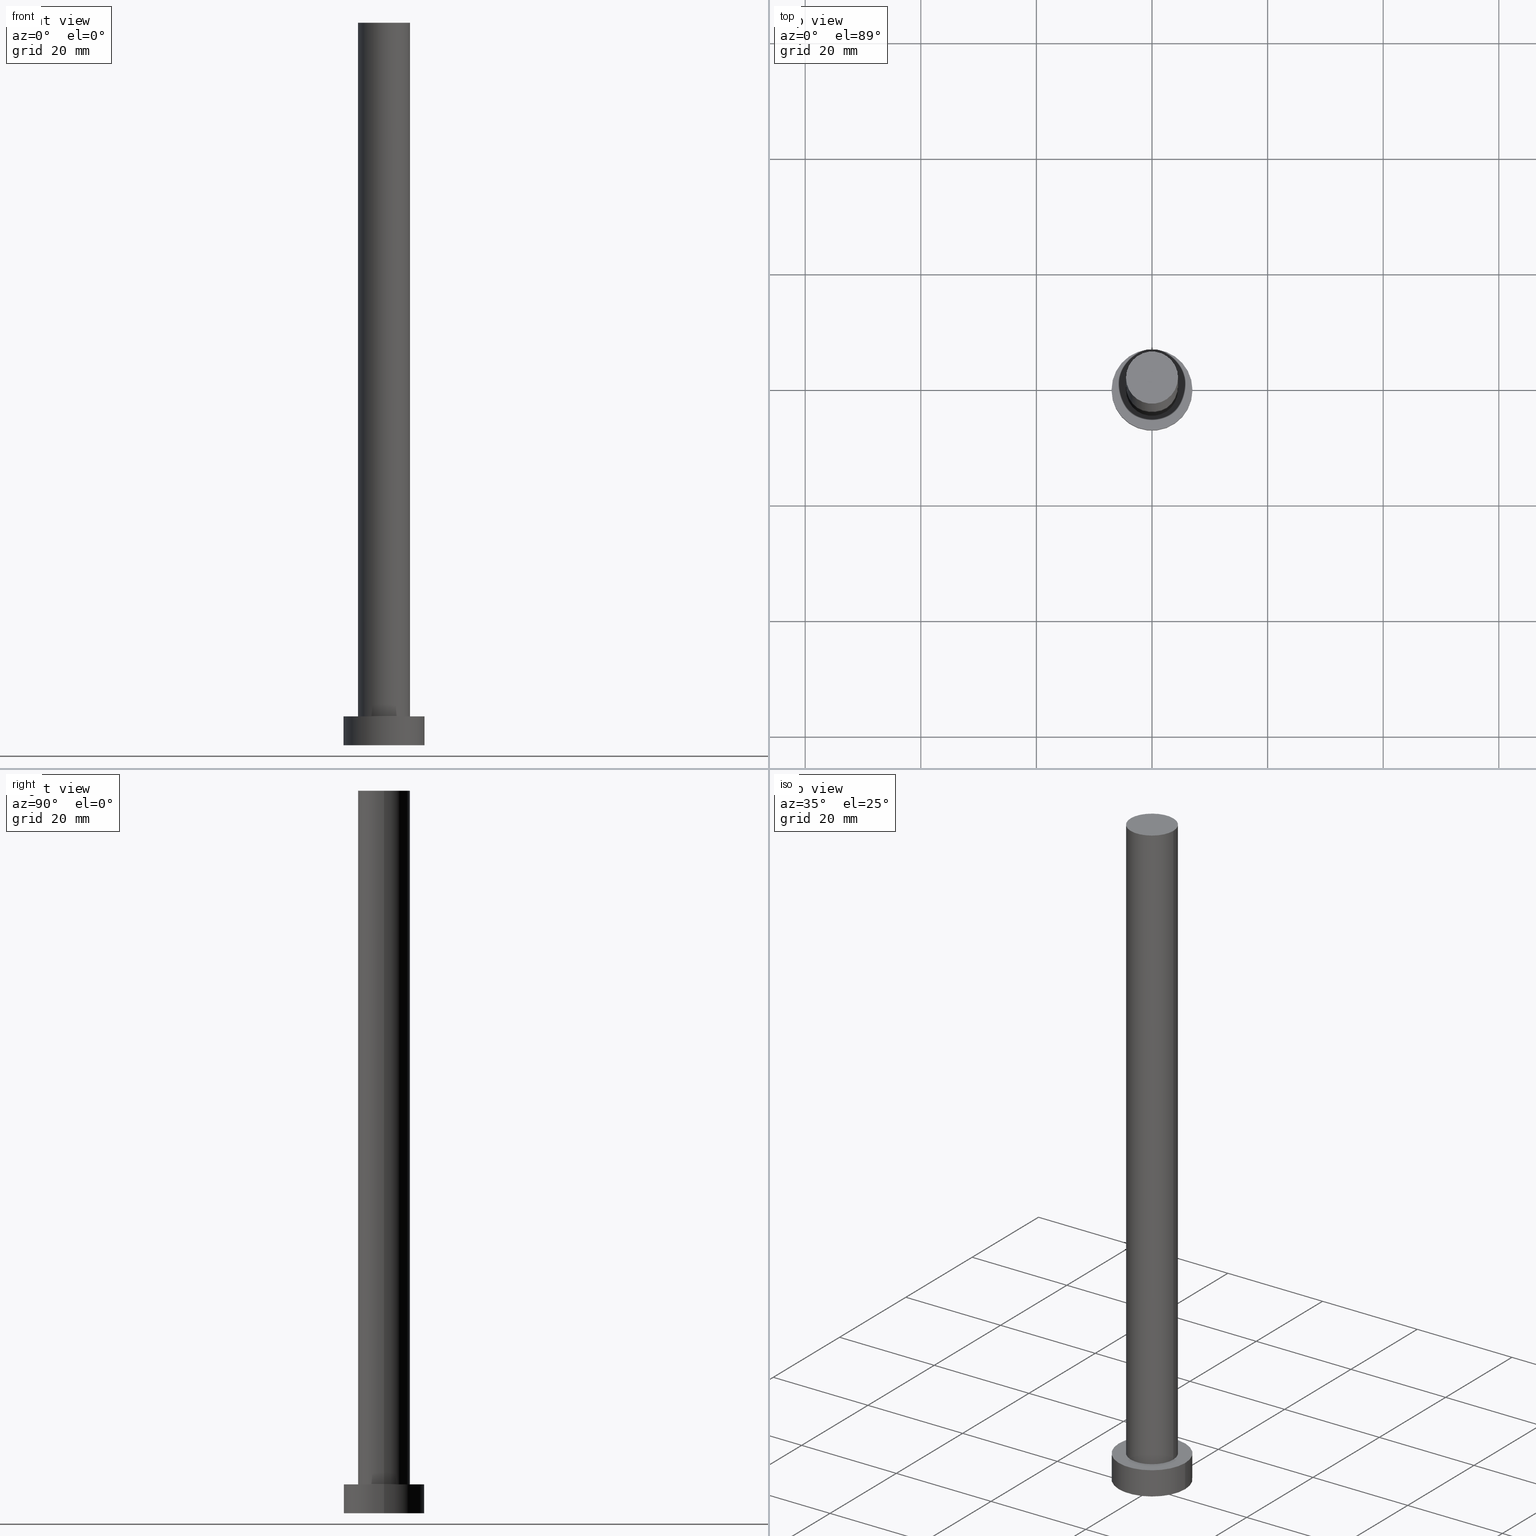
[diagram: canonical four-view strip — front | top / right | iso, engineering-drawing reading convention]
A machine part, canonical four-view strip (front | top / right | iso — engineering-drawing reading convention). The complete STEP part file that produces these views, byte-faithful:
ISO-10303-21;
HEADER;
FILE_DESCRIPTION (( 'STEP AP203' ),
    '1' );
FILE_NAME ('8ab7.STEP',
    '2023-02-13T12:09:12',
    ( '' ),
    ( '' ),
    'SwSTEP 2.0',
    'SolidWorks 2019',
    '' );
FILE_SCHEMA (( 'CONFIG_CONTROL_DESIGN' ));
ENDSEC;

DATA;
#1 = COORDINATED_UNIVERSAL_TIME_OFFSET ( 1, 0, .AHEAD. ) ;
#2 = LOCAL_TIME ( 13, 9, 12.00000000000000000, #73 ) ;
#3 = EDGE_LOOP ( 'NONE', ( #94, #121 ) ) ;
#4 = CC_DESIGN_PERSON_AND_ORGANIZATION_ASSIGNMENT ( #199, #153, ( #166 ) ) ;
#5 = CARTESIAN_POINT ( 'NONE',  ( 7.000000000000000000, 8.572527594031473190E-16, 0.000000000000000000 ) ) ;
#6 = CYLINDRICAL_SURFACE ( 'NONE', #186, 7.000000000000000000 ) ;
#7 = CYLINDRICAL_SURFACE ( 'NONE', #105, 7.000000000000000000 ) ;
#8 = CARTESIAN_POINT ( 'NONE',  ( -7.000000000000000000, 0.000000000000000000, 5.000000000000000000 ) ) ;
#9 = EDGE_CURVE ( 'NONE', #100, #41, #227, .T. ) ;
#10 = DIRECTION ( 'NONE',  ( 1.000000000000000000, 0.000000000000000000, 0.000000000000000000 ) ) ;
#11 = APPROVAL_PERSON_ORGANIZATION ( #182, #209, #77 ) ;
#12 = APPROVAL_ROLE ( '' ) ;
#13 = DIRECTION ( 'NONE',  ( 1.000000000000000000, 0.000000000000000000, 0.000000000000000000 ) ) ;
#14 = AXIS2_PLACEMENT_3D ( 'NONE', #202, #17, #79 ) ;
#15 = AXIS2_PLACEMENT_3D ( 'NONE', #194, #192, #148 ) ;
#16 = ADVANCED_FACE ( 'NONE', ( #126 ), #125, .T. ) ;
#17 = DIRECTION ( 'NONE',  ( 0.000000000000000000, 0.000000000000000000, 1.000000000000000000 ) ) ;
#18 = DIRECTION ( 'NONE',  ( 0.000000000000000000, 0.000000000000000000, 1.000000000000000000 ) ) ;
#19 = ORIENTED_EDGE ( 'NONE', *, *, #60, .T. ) ;
#20 = PERSON_AND_ORGANIZATION_ROLE ( 'creator' ) ;
#21 = ORIENTED_EDGE ( 'NONE', *, *, #9, .F. ) ;
#22 = FACE_OUTER_BOUND ( 'NONE', #248, .T. ) ;
#23 = EDGE_CURVE ( 'NONE', #100, #162, #190, .T. ) ;
#24 = SHAPE_DEFINITION_REPRESENTATION ( #155, #135 ) ;
#25 = CARTESIAN_POINT ( 'NONE',  ( 0.000000000000000000, 0.000000000000000000, 125.0000000000000000 ) ) ;
#26 = DIRECTION ( 'NONE',  ( -0.000000000000000000, -0.000000000000000000, -1.000000000000000000 ) ) ;
#27 = DIRECTION ( 'NONE',  ( -0.000000000000000000, -0.000000000000000000, -1.000000000000000000 ) ) ;
#28 = CC_DESIGN_APPROVAL ( #209, ( #176 ) ) ;
#29 = DIRECTION ( 'NONE',  ( 0.000000000000000000, 0.000000000000000000, 1.000000000000000000 ) ) ;
#30 = CIRCLE ( 'NONE', #81, 7.000000000000000000 ) ;
#31 = ORIENTED_EDGE ( 'NONE', *, *, #255, .T. ) ;
#32 =( LENGTH_UNIT ( ) NAMED_UNIT ( * ) SI_UNIT ( .MILLI., .METRE. ) );
#33 = EDGE_CURVE ( 'NONE', #117, #162, #30, .T. ) ;
#34 = PRODUCT_DEFINITION_FORMATION_WITH_SPECIFIED_SOURCE ( 'LIBOVOLN�', '', #166, .NOT_KNOWN. ) ;
#35 = APPROVAL_STATUS ( 'not_yet_approved' ) ;
#36 = PERSON_AND_ORGANIZATION_ROLE ( 'classification_officer' ) ;
#37 = ORIENTED_EDGE ( 'NONE', *, *, #218, .T. ) ;
#38 = ADVANCED_FACE ( 'NONE', ( #22 ), #7, .T. ) ;
#39 = LOCAL_TIME ( 13, 9, 12.00000000000000000, #159 ) ;
#40 = CARTESIAN_POINT ( 'NONE',  ( 0.000000000000000000, 0.000000000000000000, 0.000000000000000000 ) ) ;
#41 = VERTEX_POINT ( 'NONE', #44 ) ;
#42 = CARTESIAN_POINT ( 'NONE',  ( -4.500000000000000888, 0.000000000000000000, 5.000000000000000000 ) ) ;
#43 = DIRECTION ( 'NONE',  ( 1.000000000000000000, 0.000000000000000000, -0.000000000000000000 ) ) ;
#44 = CARTESIAN_POINT ( 'NONE',  ( 7.000000000000000000, 8.572527594031473190E-16, 5.000000000000000000 ) ) ;
#45 = APPLICATION_CONTEXT ( 'configuration controlled 3d designs of mechanical parts and assemblies' ) ;
#46 = FACE_BOUND ( 'NONE', #165, .T. ) ;
#47 = CIRCLE ( 'NONE', #131, 4.500000000000000888 ) ;
#48 = DIRECTION ( 'NONE',  ( -0.000000000000000000, -0.000000000000000000, -1.000000000000000000 ) ) ;
#49 = CC_DESIGN_APPROVAL ( #236, ( #34 ) ) ;
#50 = CARTESIAN_POINT ( 'NONE',  ( -7.000000000000000000, 0.000000000000000000, 0.000000000000000000 ) ) ;
#51 = DIRECTION ( 'NONE',  ( 1.000000000000000000, 0.000000000000000000, 0.000000000000000000 ) ) ;
#52 = DIRECTION ( 'NONE',  ( 0.000000000000000000, 0.000000000000000000, 1.000000000000000000 ) ) ;
#53 = APPROVAL_ROLE ( '' ) ;
#54 = EDGE_LOOP ( 'NONE', ( #138, #228 ) ) ;
#55 = CIRCLE ( 'NONE', #106, 4.500000000000000888 ) ;
#56 = ADVANCED_FACE ( 'NONE', ( #85 ), #174, .T. ) ;
#57 = ORIENTED_EDGE ( 'NONE', *, *, #139, .F. ) ;
#58 = VERTEX_POINT ( 'NONE', #168 ) ;
#59 = SECURITY_CLASSIFICATION_LEVEL ( 'unclassified' ) ;
#60 = EDGE_CURVE ( 'NONE', #215, #78, #206, .T. ) ;
#61 = DATE_AND_TIME ( #66, #39 ) ;
#62 = DIRECTION ( 'NONE',  ( 0.000000000000000000, 0.000000000000000000, 1.000000000000000000 ) ) ;
#63 = CYLINDRICAL_SURFACE ( 'NONE', #195, 4.500000000000000888 ) ;
#64 = CC_DESIGN_DATE_AND_TIME_ASSIGNMENT ( #237, #230, ( #119 ) ) ;
#65 = PLANE ( 'NONE',  #222 ) ;
#66 = CALENDAR_DATE ( 2023, 13, 2 ) ;
#67 = CARTESIAN_POINT ( 'NONE',  ( 0.000000000000000000, 0.000000000000000000, 125.0000000000000000 ) ) ;
#68 = CARTESIAN_POINT ( 'NONE',  ( 0.000000000000000000, 0.000000000000000000, 5.000000000000000000 ) ) ;
#69 = ADVANCED_FACE ( 'NONE', ( #46, #171 ), #147, .T. ) ;
#70 = CARTESIAN_POINT ( 'NONE',  ( 0.000000000000000000, 0.000000000000000000, 5.000000000000000000 ) ) ;
#71 = CARTESIAN_POINT ( 'NONE',  ( 0.000000000000000000, 0.000000000000000000, 125.0000000000000000 ) ) ;
#72 = PRODUCT_RELATED_PRODUCT_CATEGORY ( 'detail', '', ( #166 ) ) ;
#73 = COORDINATED_UNIVERSAL_TIME_OFFSET ( 1, 0, .AHEAD. ) ;
#74 = AXIS2_PLACEMENT_3D ( 'NONE', #70, #91, #109 ) ;
#75 = CALENDAR_DATE ( 2023, 13, 2 ) ;
#76 = VERTEX_POINT ( 'NONE', #42 ) ;
#77 = APPROVAL_ROLE ( '' ) ;
#78 = VERTEX_POINT ( 'NONE', #243 ) ;
#79 = DIRECTION ( 'NONE',  ( 1.000000000000000000, 0.000000000000000000, 0.000000000000000000 ) ) ;
#80 = DIRECTION ( 'NONE',  ( 0.000000000000000000, 0.000000000000000000, 1.000000000000000000 ) ) ;
#81 = AXIS2_PLACEMENT_3D ( 'NONE', #104, #80, #208 ) ;
#82 = ADVANCED_FACE ( 'NONE', ( #122 ), #63, .T. ) ;
#83 = UNCERTAINTY_MEASURE_WITH_UNIT (LENGTH_MEASURE( 1.000000000000000082E-05 ), #32, 'distance_accuracy_value', 'NONE');
#84 = DIRECTION ( 'NONE',  ( -1.000000000000000000, 0.000000000000000000, 0.000000000000000000 ) ) ;
#85 = FACE_OUTER_BOUND ( 'NONE', #252, .T. ) ;
#86 = CARTESIAN_POINT ( 'NONE',  ( 0.000000000000000000, 0.000000000000000000, 125.0000000000000000 ) ) ;
#87 = EDGE_CURVE ( 'NONE', #76, #78, #47, .T. ) ;
#88 = LOCAL_TIME ( 13, 9, 12.00000000000000000, #1 ) ;
#89 = CC_DESIGN_DATE_AND_TIME_ASSIGNMENT ( #98, #200, ( #176 ) ) ;
#90 = AXIS2_PLACEMENT_3D ( 'NONE', #172, #62, #221 ) ;
#91 = DIRECTION ( 'NONE',  ( 0.000000000000000000, 0.000000000000000000, 1.000000000000000000 ) ) ;
#92 = CIRCLE ( 'NONE', #15, 7.000000000000000000 ) ;
#93 = DATE_AND_TIME ( #116, #2 ) ;
#94 = ORIENTED_EDGE ( 'NONE', *, *, #218, .F. ) ;
#95 = APPLICATION_PROTOCOL_DEFINITION ( 'international standard', 'config_control_design', 1994, #45 ) ;
#96 = PERSON_AND_ORGANIZATION ( #214, #225 ) ;
#97 = APPLICATION_CONTEXT ( 'configuration controlled 3d designs of mechanical parts and assemblies' ) ;
#98 = DATE_AND_TIME ( #232, #141 ) ;
#99 = VECTOR ( 'NONE', #219, 1000.000000000000000 ) ;
#100 = VERTEX_POINT ( 'NONE', #8 ) ;
#101 = CIRCLE ( 'NONE', #74, 7.000000000000000000 ) ;
#102 = DIRECTION ( 'NONE',  ( -0.000000000000000000, -0.000000000000000000, -1.000000000000000000 ) ) ;
#103 = DIRECTION ( 'NONE',  ( 0.000000000000000000, 0.000000000000000000, 1.000000000000000000 ) ) ;
#104 = CARTESIAN_POINT ( 'NONE',  ( 0.000000000000000000, 0.000000000000000000, 0.000000000000000000 ) ) ;
#105 = AXIS2_PLACEMENT_3D ( 'NONE', #68, #27, #216 ) ;
#106 = AXIS2_PLACEMENT_3D ( 'NONE', #187, #52, #10 ) ;
#107 = DIRECTION ( 'NONE',  ( 0.000000000000000000, 0.000000000000000000, 1.000000000000000000 ) ) ;
#108 = ADVANCED_FACE ( 'NONE', ( #167 ), #6, .T. ) ;
#109 = DIRECTION ( 'NONE',  ( 1.000000000000000000, 0.000000000000000000, 0.000000000000000000 ) ) ;
#110 = CC_DESIGN_PERSON_AND_ORGANIZATION_ASSIGNMENT ( #136, #197, ( #34 ) ) ;
#111 = PERSON_AND_ORGANIZATION ( #214, #225 ) ;
#112 = ORIENTED_EDGE ( 'NONE', *, *, #23, .F. ) ;
#113 = EDGE_CURVE ( 'NONE', #215, #58, #173, .T. ) ;
#114 = COORDINATED_UNIVERSAL_TIME_OFFSET ( 1, 0, .AHEAD. ) ;
#115 = ORIENTED_EDGE ( 'NONE', *, *, #193, .F. ) ;
#116 = CALENDAR_DATE ( 2023, 13, 2 ) ;
#117 = VERTEX_POINT ( 'NONE', #5 ) ;
#118 = AXIS2_PLACEMENT_3D ( 'NONE', #25, #103, #242 ) ;
#119 = PRODUCT_DEFINITION ( 'NEZN�M�', '', #34, #164 ) ;
#120 = ORIENTED_EDGE ( 'NONE', *, *, #180, .F. ) ;
#121 = ORIENTED_EDGE ( 'NONE', *, *, #33, .F. ) ;
#122 = FACE_OUTER_BOUND ( 'NONE', #231, .T. ) ;
#123 = CARTESIAN_POINT ( 'NONE',  ( -7.000000000000000000, 0.000000000000000000, 5.000000000000000000 ) ) ;
#124 = DIRECTION ( 'NONE',  ( -0.000000000000000000, -0.000000000000000000, -1.000000000000000000 ) ) ;
#125 = CYLINDRICAL_SURFACE ( 'NONE', #160, 4.500000000000000888 ) ;
#126 = FACE_OUTER_BOUND ( 'NONE', #140, .T. ) ;
#127 = CLOSED_SHELL ( 'NONE', ( #82, #108, #38, #69, #134, #16, #56 ) ) ;
#128 = CIRCLE ( 'NONE', #169, 4.500000000000000888 ) ;
#129 = CARTESIAN_POINT ( 'NONE',  ( 7.000000000000000000, 8.572527594031473190E-16, 5.000000000000000000 ) ) ;
#130 = CARTESIAN_POINT ( 'NONE',  ( -4.500000000000000888, 0.000000000000000000, 125.0000000000000000 ) ) ;
#131 = AXIS2_PLACEMENT_3D ( 'NONE', #144, #107, #188 ) ;
#132 =( NAMED_UNIT ( * ) SI_UNIT ( $, .STERADIAN. ) SOLID_ANGLE_UNIT ( ) );
#133 =( GEOMETRIC_REPRESENTATION_CONTEXT ( 3 ) GLOBAL_UNCERTAINTY_ASSIGNED_CONTEXT ( ( #83 ) ) GLOBAL_UNIT_ASSIGNED_CONTEXT ( ( #32, #196, #132 ) ) REPRESENTATION_CONTEXT ( 'NONE', 'WORKASPACE' ) );
#134 = ADVANCED_FACE ( 'NONE', ( #239 ), #65, .F. ) ;
#135 = ADVANCED_BREP_SHAPE_REPRESENTATION ( '8ab7', ( #244, #154 ), #133 ) ;
#136 = PERSON_AND_ORGANIZATION ( #214, #225 ) ;
#137 = PERSON_AND_ORGANIZATION_ROLE ( 'creator' ) ;
#138 = ORIENTED_EDGE ( 'NONE', *, *, #9, .T. ) ;
#139 = EDGE_CURVE ( 'NONE', #78, #76, #55, .T. ) ;
#140 = EDGE_LOOP ( 'NONE', ( #157, #254, #150, #181 ) ) ;
#141 = LOCAL_TIME ( 13, 9, 12.00000000000000000, #114 ) ;
#142 = COORDINATED_UNIVERSAL_TIME_OFFSET ( 1, 0, .AHEAD. ) ;
#143 = ORIENTED_EDGE ( 'NONE', *, *, #139, .T. ) ;
#144 = CARTESIAN_POINT ( 'NONE',  ( 0.000000000000000000, 0.000000000000000000, 5.000000000000000000 ) ) ;
#145 = DIRECTION ( 'NONE',  ( -1.000000000000000000, 0.000000000000000000, 0.000000000000000000 ) ) ;
#146 = CARTESIAN_POINT ( 'NONE',  ( 0.000000000000000000, 0.000000000000000000, 0.000000000000000000 ) ) ;
#147 = PLANE ( 'NONE',  #250 ) ;
#148 = DIRECTION ( 'NONE',  ( 1.000000000000000000, 0.000000000000000000, 0.000000000000000000 ) ) ;
#149 = LINE ( 'NONE', #129, #241 ) ;
#150 = ORIENTED_EDGE ( 'NONE', *, *, #180, .T. ) ;
#151 = APPROVAL_PERSON_ORGANIZATION ( #226, #249, #53 ) ;
#152 = DIRECTION ( 'NONE',  ( 0.000000000000000000, 0.000000000000000000, 1.000000000000000000 ) ) ;
#153 = PERSON_AND_ORGANIZATION_ROLE ( 'design_owner' ) ;
#154 = AXIS2_PLACEMENT_3D ( 'NONE', #40, #18, #13 ) ;
#155 = PRODUCT_DEFINITION_SHAPE ( 'NONE', 'NONE',  #119 ) ;
#156 = PERSON_AND_ORGANIZATION ( #214, #225 ) ;
#157 = ORIENTED_EDGE ( 'NONE', *, *, #60, .F. ) ;
#158 = CC_DESIGN_PERSON_AND_ORGANIZATION_ASSIGNMENT ( #111, #20, ( #34 ) ) ;
#159 = COORDINATED_UNIVERSAL_TIME_OFFSET ( 1, 0, .AHEAD. ) ;
#160 = AXIS2_PLACEMENT_3D ( 'NONE', #86, #26, #145 ) ;
#161 = DATE_AND_TIME ( #234, #205 ) ;
#162 = VERTEX_POINT ( 'NONE', #50 ) ;
#163 = CC_DESIGN_SECURITY_CLASSIFICATION ( #176, ( #34 ) ) ;
#164 = DESIGN_CONTEXT ( 'detailed design', #45, 'design' ) ;
#165 = EDGE_LOOP ( 'NONE', ( #185, #57 ) ) ;
#166 = PRODUCT ( '8ab7', '8ab7', '', ( #183 ) ) ;
#167 = FACE_OUTER_BOUND ( 'NONE', #235, .T. ) ;
#168 = CARTESIAN_POINT ( 'NONE',  ( -4.500000000000000888, 0.000000000000000000, 125.0000000000000000 ) ) ;
#169 = AXIS2_PLACEMENT_3D ( 'NONE', #71, #152, #51 ) ;
#170 = APPROVAL_DATE_TIME ( #61, #209 ) ;
#171 = FACE_OUTER_BOUND ( 'NONE', #54, .T. ) ;
#172 = CARTESIAN_POINT ( 'NONE',  ( 0.000000000000000000, 0.000000000000000000, 125.0000000000000000 ) ) ;
#173 = CIRCLE ( 'NONE', #118, 4.500000000000000888 ) ;
#174 = PLANE ( 'NONE',  #90 ) ;
#175 = LINE ( 'NONE', #130, #247 ) ;
#176 = SECURITY_CLASSIFICATION ( '', '', #59 ) ;
#177 = APPROVAL_DATE_TIME ( #93, #236 ) ;
#178 = ORIENTED_EDGE ( 'NONE', *, *, #223, .T. ) ;
#179 = APPROVAL_STATUS ( 'not_yet_approved' ) ;
#180 = EDGE_CURVE ( 'NONE', #58, #76, #175, .T. ) ;
#181 = ORIENTED_EDGE ( 'NONE', *, *, #87, .T. ) ;
#182 = PERSON_AND_ORGANIZATION ( #214, #225 ) ;
#183 = MECHANICAL_CONTEXT ( 'NONE', #97, 'mechanical' ) ;
#184 = APPLICATION_PROTOCOL_DEFINITION ( 'international standard', 'config_control_design', 1994, #97 ) ;
#185 = ORIENTED_EDGE ( 'NONE', *, *, #87, .F. ) ;
#186 = AXIS2_PLACEMENT_3D ( 'NONE', #204, #102, #84 ) ;
#187 = CARTESIAN_POINT ( 'NONE',  ( 0.000000000000000000, 0.000000000000000000, 5.000000000000000000 ) ) ;
#188 = DIRECTION ( 'NONE',  ( 1.000000000000000000, 0.000000000000000000, 0.000000000000000000 ) ) ;
#189 = CC_DESIGN_PERSON_AND_ORGANIZATION_ASSIGNMENT ( #213, #36, ( #176 ) ) ;
#190 = LINE ( 'NONE', #123, #99 ) ;
#191 = DIRECTION ( 'NONE',  ( -1.000000000000000000, 0.000000000000000000, 0.000000000000000000 ) ) ;
#192 = DIRECTION ( 'NONE',  ( 0.000000000000000000, 0.000000000000000000, 1.000000000000000000 ) ) ;
#193 = EDGE_CURVE ( 'NONE', #41, #100, #101, .T. ) ;
#194 = CARTESIAN_POINT ( 'NONE',  ( 0.000000000000000000, 0.000000000000000000, 0.000000000000000000 ) ) ;
#195 = AXIS2_PLACEMENT_3D ( 'NONE', #67, #48, #191 ) ;
#196 =( NAMED_UNIT ( * ) PLANE_ANGLE_UNIT ( ) SI_UNIT ( $, .RADIAN. ) );
#197 = PERSON_AND_ORGANIZATION_ROLE ( 'design_supplier' ) ;
#198 = ORIENTED_EDGE ( 'NONE', *, *, #113, .F. ) ;
#199 = PERSON_AND_ORGANIZATION ( #214, #225 ) ;
#200 = DATE_TIME_ROLE ( 'classification_date' ) ;
#201 = CC_DESIGN_APPROVAL ( #249, ( #119 ) ) ;
#202 = CARTESIAN_POINT ( 'NONE',  ( 0.000000000000000000, 0.000000000000000000, 5.000000000000000000 ) ) ;
#203 = ORIENTED_EDGE ( 'NONE', *, *, #223, .F. ) ;
#204 = CARTESIAN_POINT ( 'NONE',  ( 0.000000000000000000, 0.000000000000000000, 5.000000000000000000 ) ) ;
#205 = LOCAL_TIME ( 13, 9, 12.00000000000000000, #142 ) ;
#206 = LINE ( 'NONE', #246, #245 ) ;
#207 = CC_DESIGN_PERSON_AND_ORGANIZATION_ASSIGNMENT ( #96, #137, ( #119 ) ) ;
#208 = DIRECTION ( 'NONE',  ( 1.000000000000000000, 0.000000000000000000, 0.000000000000000000 ) ) ;
#209 = APPROVAL ( #253, 'NEUR�EN�' ) ;
#210 = DIRECTION ( 'NONE',  ( -0.000000000000000000, -0.000000000000000000, -1.000000000000000000 ) ) ;
#211 = APPROVAL_DATE_TIME ( #161, #249 ) ;
#212 = ORIENTED_EDGE ( 'NONE', *, *, #33, .T. ) ;
#213 = PERSON_AND_ORGANIZATION ( #214, #225 ) ;
#214 = PERSON ( 'NEUR�EN�', 'NEUR�EN�', 'NEUR�EN�', ('NEUR�EN�'), ('NEUR�EN�'), ('NEUR�EN�') ) ;
#215 = VERTEX_POINT ( 'NONE', #224 ) ;
#216 = DIRECTION ( 'NONE',  ( -1.000000000000000000, 0.000000000000000000, 0.000000000000000000 ) ) ;
#217 = DIRECTION ( 'NONE',  ( 0.000000000000000000, 0.000000000000000000, 1.000000000000000000 ) ) ;
#218 = EDGE_CURVE ( 'NONE', #162, #117, #92, .T. ) ;
#219 = DIRECTION ( 'NONE',  ( -0.000000000000000000, -0.000000000000000000, -1.000000000000000000 ) ) ;
#220 = DIRECTION ( 'NONE',  ( 1.000000000000000000, 0.000000000000000000, -0.000000000000000000 ) ) ;
#221 = DIRECTION ( 'NONE',  ( 1.000000000000000000, 0.000000000000000000, -0.000000000000000000 ) ) ;
#222 = AXIS2_PLACEMENT_3D ( 'NONE', #146, #217, #43 ) ;
#223 = EDGE_CURVE ( 'NONE', #41, #117, #149, .T. ) ;
#224 = CARTESIAN_POINT ( 'NONE',  ( 4.500000000000000888, 5.510910596163089556E-16, 125.0000000000000000 ) ) ;
#225 = ORGANIZATION ( 'NEUR�EN�', 'NEUR�EN�', '' ) ;
#226 = PERSON_AND_ORGANIZATION ( #214, #225 ) ;
#227 = CIRCLE ( 'NONE', #14, 7.000000000000000000 ) ;
#228 = ORIENTED_EDGE ( 'NONE', *, *, #193, .T. ) ;
#229 = APPROVAL_PERSON_ORGANIZATION ( #156, #236, #12 ) ;
#230 = DATE_TIME_ROLE ( 'creation_date' ) ;
#231 = EDGE_LOOP ( 'NONE', ( #198, #19, #143, #120 ) ) ;
#232 = CALENDAR_DATE ( 2023, 13, 2 ) ;
#233 = ORIENTED_EDGE ( 'NONE', *, *, #113, .T. ) ;
#234 = CALENDAR_DATE ( 2023, 13, 2 ) ;
#235 = EDGE_LOOP ( 'NONE', ( #115, #178, #212, #112 ) ) ;
#236 = APPROVAL ( #35, 'NEUR�EN�' ) ;
#237 = DATE_AND_TIME ( #75, #88 ) ;
#238 = ORIENTED_EDGE ( 'NONE', *, *, #23, .T. ) ;
#239 = FACE_OUTER_BOUND ( 'NONE', #3, .T. ) ;
#240 = CARTESIAN_POINT ( 'NONE',  ( 0.000000000000000000, 0.000000000000000000, 5.000000000000000000 ) ) ;
#241 = VECTOR ( 'NONE', #251, 1000.000000000000000 ) ;
#242 = DIRECTION ( 'NONE',  ( 1.000000000000000000, 0.000000000000000000, 0.000000000000000000 ) ) ;
#243 = CARTESIAN_POINT ( 'NONE',  ( 4.500000000000000888, 5.510910596163089556E-16, 5.000000000000000000 ) ) ;
#244 = MANIFOLD_SOLID_BREP ( 'P�idat vysunut�m3', #127 ) ;
#245 = VECTOR ( 'NONE', #124, 1000.000000000000000 ) ;
#246 = CARTESIAN_POINT ( 'NONE',  ( 4.500000000000000888, 5.510910596163089556E-16, 125.0000000000000000 ) ) ;
#247 = VECTOR ( 'NONE', #210, 1000.000000000000000 ) ;
#248 = EDGE_LOOP ( 'NONE', ( #203, #21, #238, #37 ) ) ;
#249 = APPROVAL ( #179, 'NEUR�EN�' ) ;
#250 = AXIS2_PLACEMENT_3D ( 'NONE', #240, #29, #220 ) ;
#251 = DIRECTION ( 'NONE',  ( -0.000000000000000000, -0.000000000000000000, -1.000000000000000000 ) ) ;
#252 = EDGE_LOOP ( 'NONE', ( #31, #233 ) ) ;
#253 = APPROVAL_STATUS ( 'not_yet_approved' ) ;
#254 = ORIENTED_EDGE ( 'NONE', *, *, #255, .F. ) ;
#255 = EDGE_CURVE ( 'NONE', #58, #215, #128, .T. ) ;
ENDSEC;
END-ISO-10303-21;
